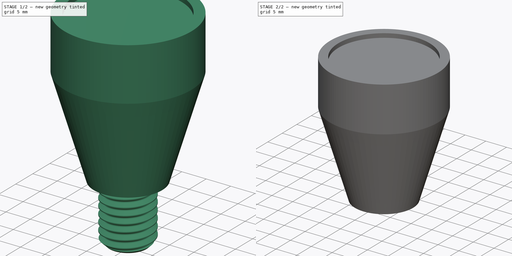
[diagram: build sequence overview — one tinted view per stage of 2, left to right]
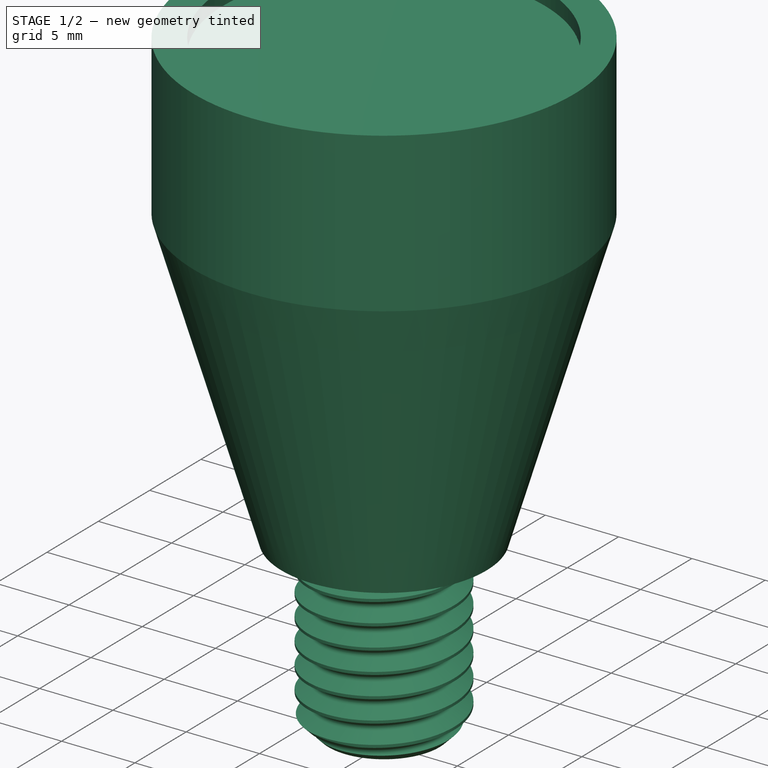
[diagram: stage 1 of 2 — iso view after this stage's code; geometry added in this stage tinted green]
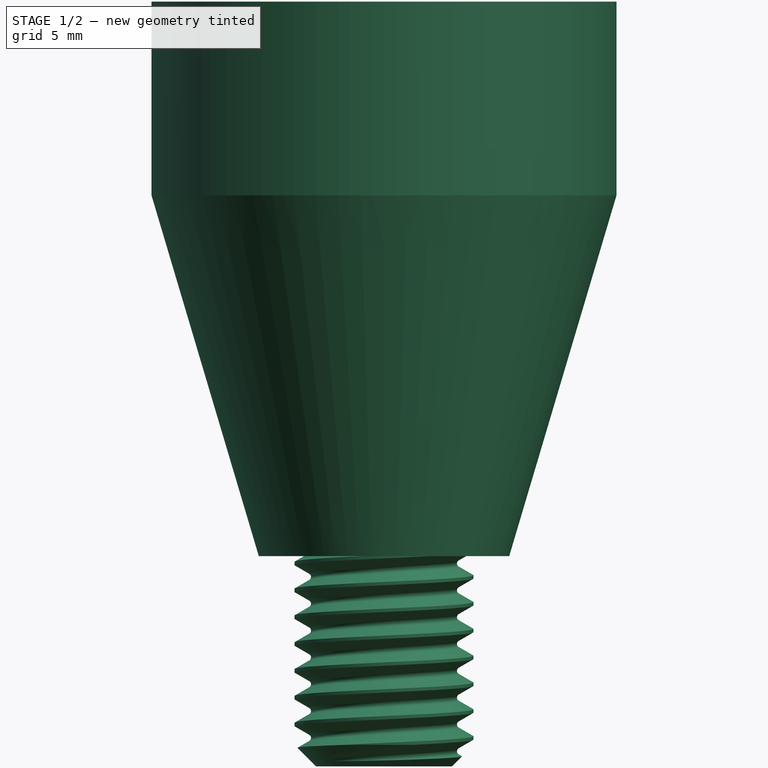
[diagram: stage 1 of 2 — front view after this stage's code; geometry added in this stage tinted green]
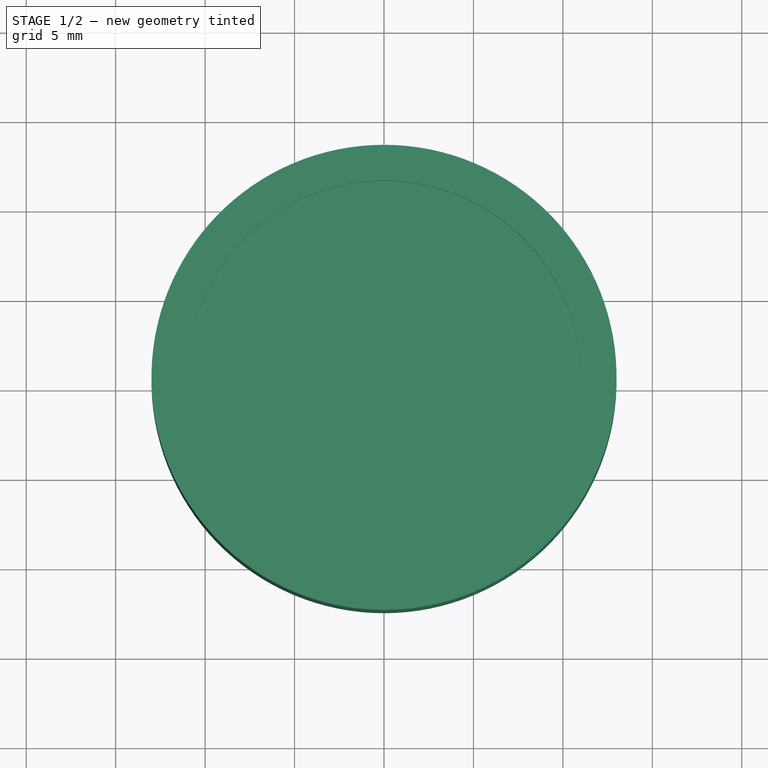
[diagram: stage 1 of 2 — top view after this stage's code; geometry added in this stage tinted green]
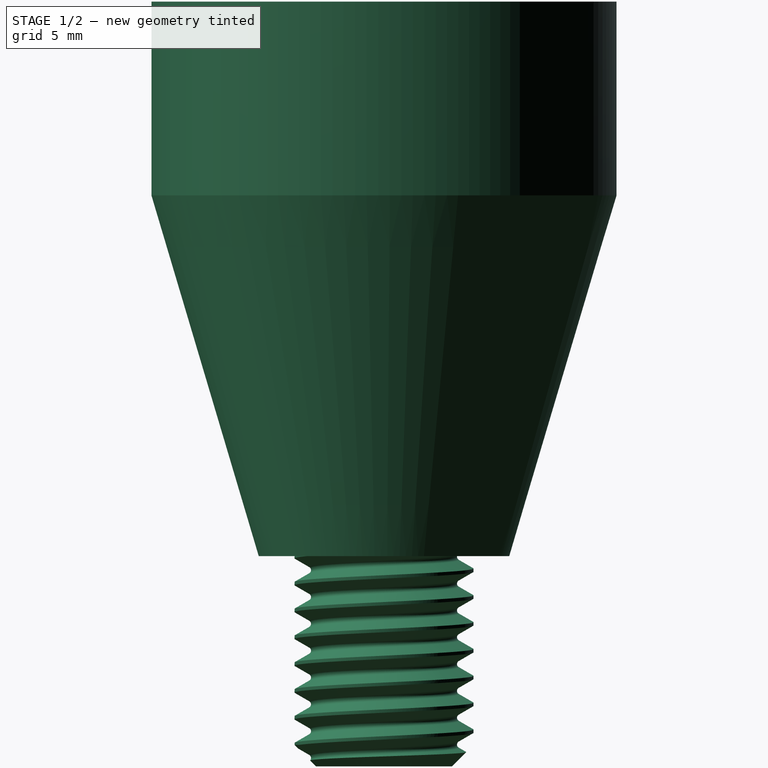
[diagram: stage 1 of 2 — right view after this stage's code; geometry added in this stage tinted green]
FCSTD DOCUMENT  (FreeCAD 0.19R24267 +148 (Git))
Label: gijon_holder
License: All rights reserved
LicenseURL: http://en.wikipedia.org/wiki/All_rights_reserved
objects: Sketcher::SketchObject×2, PartDesign::Revolution×1, PartDesign::Plane×1, PartDesign::Pocket×1, PartDesign::Body×1, App::Part×1, Part::FeaturePython×1, Part::Cut×1
note: 10 computed .brp shape members not serialized (recipe doc carries the construction recipe); baked Part::Feature solids carry a one-line shape summary decoded from their .brp

FEATURE [Sketcher::SketchObject] Sketch
  FullyConstrained = false
  MapMode = 5
  Placement = pos=(0,0,0) rot=(0.57735,0.57735,0.57735;2.0944rad)
  Support = -> [YZ_Plane001]
  sketch-geometry (7):
    g0: LineSegment StartX=0 StartY=0 StartZ=0 EndX=-7 EndY=0 EndZ=0
    g1: LineSegment StartX=-7 StartY=0 StartZ=0 EndX=-13 EndY=20.1681 EndZ=0
    g2: LineSegment StartX=-13 StartY=20.1681 StartZ=0 EndX=-13 EndY=31 EndZ=0
    g3: LineSegment StartX=-13 StartY=31 StartZ=0 EndX=-11 EndY=31 EndZ=0
    g4: LineSegment StartX=-11 StartY=31 StartZ=0 EndX=-11 EndY=30 EndZ=0
    g5: LineSegment StartX=-11 StartY=30 StartZ=0 EndX=0 EndY=30 EndZ=0
    g6: LineSegment StartX=0 StartY=30 StartZ=0 EndX=0 EndY=0 EndZ=0
  constraints (19):
    c: Coincident(g-1,g0)
    c: PointOnObject(g0,g-1)
    c: Coincident(g0,g1)
    c: Coincident(g1,g2)
    c: Vertical(g2)
    c: Coincident(g2,g3)
    c: Horizontal(g3)
    c: Coincident(g3,g4)
    c: Coincident(g4,g5)
    c: PointOnObject(g5,g-2)
    c: Horizontal(g5)
    c: Coincident(g5,g6)
    c: Coincident(g6,g0)
    c: DistanceX(g0,g0) = 7
    c: DistanceX(g5,g5) = 11
    c: DistanceX(g3,g3) = 2
    c: Vertical(g4)
    c: DistanceY(g4,g4) = 1
    c: DistanceY(g6,g6) = 30
FEATURE [PartDesign::Revolution] Revolution
  Angle = 360
  Axis = (-2e-16,3e-16,1)
  Base = (0,0,0)
  Placement = pos=(0,0,0) rot=(0.57735,0.57735,0.57735;2.0944rad)
  Profile = -> Sketch
  ReferenceAxis = -> Sketch [V_Axis]
FEATURE [PartDesign::Body] Body
  Group = -> [Sketch,Revolution,DatumPlane,Sketch001,Pocket]
  Origin = -> Origin001
  Tip = -> Pocket
FEATURE [App::Part] Part
  Group = -> [Body]
  Origin = -> Origin
FEATURE [Part::FeaturePython] ThreadedRod  label="M10x40.0-ThreadedRod"  # Fasteners workbench fastener (typed FeaturePython)
  Placement = pos=(0,0,28) rot=(0,0,1;0rad)
  diameter = 10
  diameterCustom = 6
  invert = false
  length = 40
  matchOuter = false
  offset = 0
  pitchCustom = 1
  thread = true
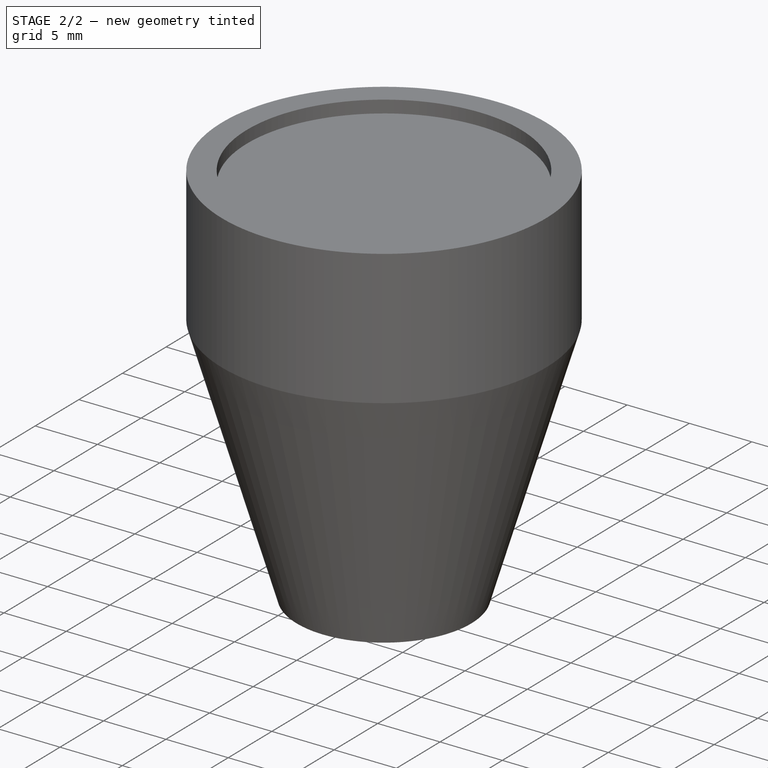
[diagram: stage 2 of 2 — iso view after this stage's code; geometry added in this stage tinted green]
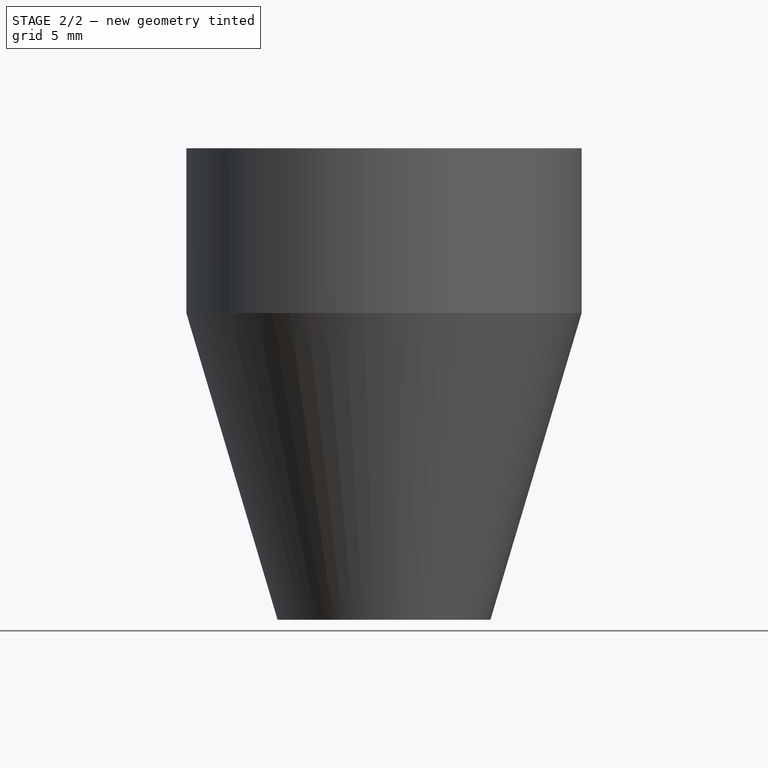
[diagram: stage 2 of 2 — front view after this stage's code; geometry added in this stage tinted green]
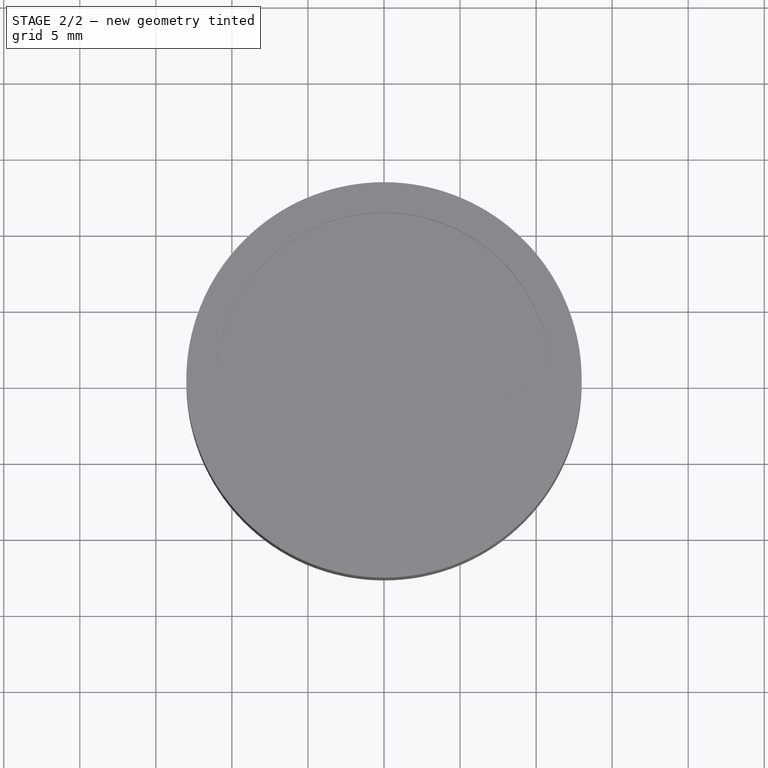
[diagram: stage 2 of 2 — top view after this stage's code; geometry added in this stage tinted green]
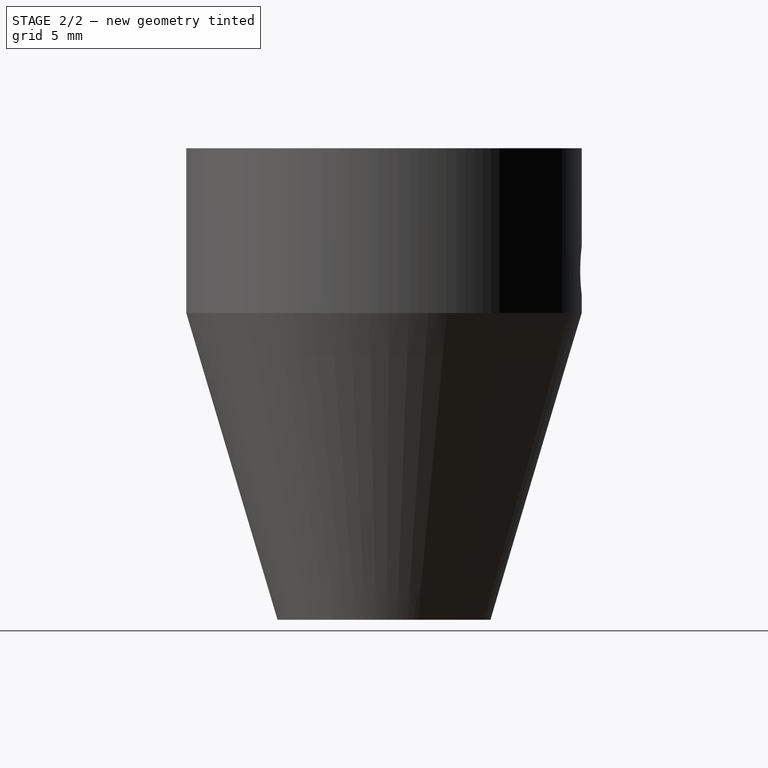
[diagram: stage 2 of 2 — right view after this stage's code; geometry added in this stage tinted green]
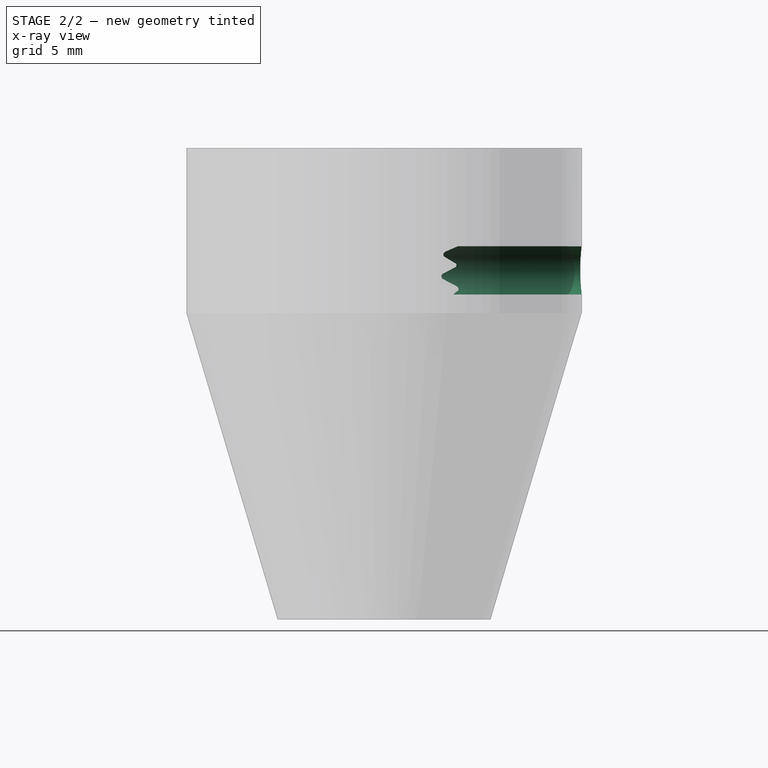
[diagram: stage 2 of 2 — x-ray composite at the right view; earlier geometry ghosted, this stage's added geometry solid]
FEATURE [PartDesign::Plane] DatumPlane
  AttachmentOffset = pos=(0,0,6) rot=(1,0,0;1.5708rad)
  Length = 60.6381
  MapMode = 45
  Placement = pos=(-1.43e-14,7.1e-15,31.5841) rot=(1,0,0;1.5708rad)
  ResizeMode = 0
  Support = -> [Revolution]
  Width = 67.2221
FEATURE [Sketcher::SketchObject] Sketch001
  FullyConstrained = false
  MapMode = 5
  Placement = pos=(-1.43e-14,7.1e-15,31.5841) rot=(1,0,0;1.5708rad)
  Support = -> [DatumPlane]
  sketch-geometry (1):
    g0: Circle CenterX=-0.007974 CenterY=-8.62348 CenterZ=0 NormalX=0 NormalY=0 NormalZ=1 AngleXU=0 Radius=1.6
  constraints (1):
    c: Radius(g0) = 1.6
FEATURE [PartDesign::Pocket] Pocket
  BaseFeature = -> Revolution
  Length = 15
  Length2 = 100
  Placement = pos=(0,0,0) rot=(0.57735,0.57735,0.57735;2.0944rad)
  Profile = -> Sketch001
  Type = 0
FEATURE [Part::Cut] Cut
  Base = -> Body
  Tool = -> ThreadedRod
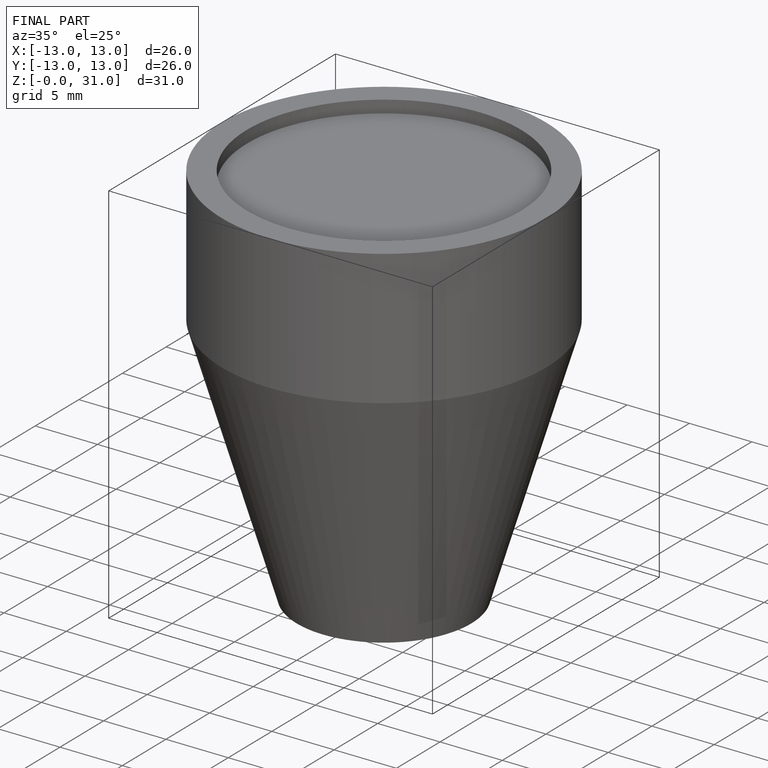
[diagram: finished part — iso view with bounding-box wireframe]
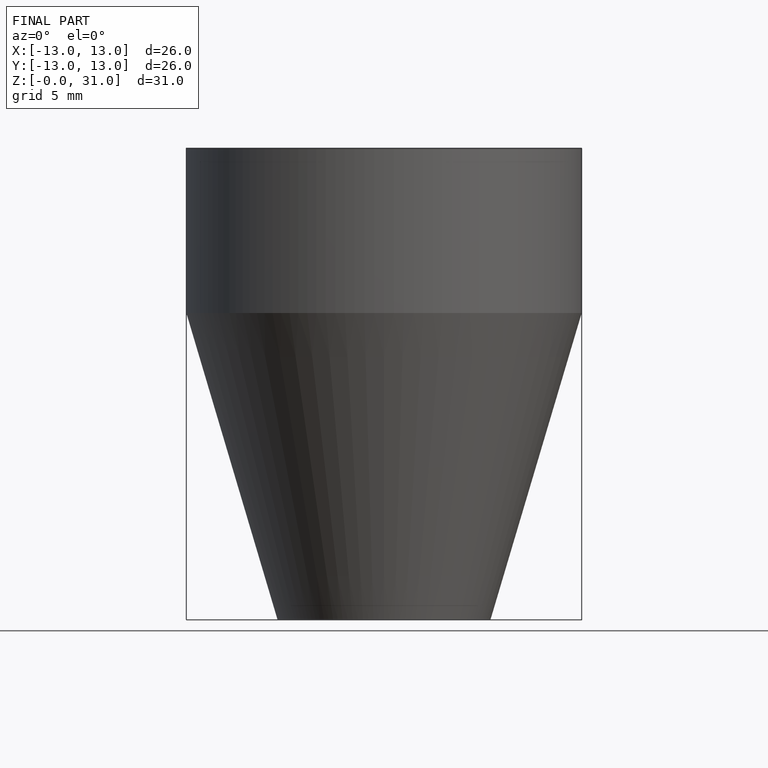
[diagram: finished part — front view with bounding-box wireframe]
